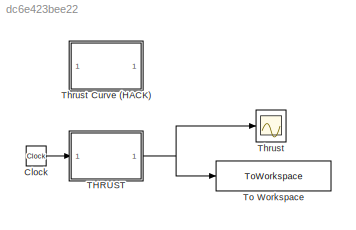
MODEL slx_dc6e423bee22
KIND model
CONFIG AbsTol = auto
CONFIG FixedStep = auto
CONFIG MaxStep = auto
CONFIG MinStep = auto
CONFIG RelTol = 1e-3
CONFIG SampleTimeConstraint = Unconstrained
CONFIG Solver = ode45
CONFIG SolverMode = Auto
CONFIG SolverName = ode45
CONFIG StartTime = 0.0
CONFIG StopTime = 10.0
BLOCK [Clock] Clock
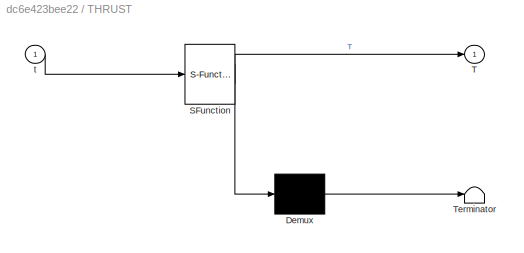
BLOCK [SubSystem] THRUST
  ErrorFcn = Stateflow.Translate.translate
  PermitHierarchicalResolution = ExplicitOnly
  Ports = [1, 1]
  RequestExecContextInheritance = off
  TreatAsAtomicUnit = on
BLOCK [Demux] THRUST/ Demux 
  Outputs = 1
  Ports = [1, 1]
BLOCK [S-Function] THRUST/ SFunction 
  EnableBusSupport = on
  FunctionName = thrust_hack
  PortCounts = [1 2]
  Ports = [1, 2]
  Tag = Stateflow S-Function VELOCITY_MODEL 2
BLOCK [Terminator] THRUST/ Terminator 
BLOCK [Outport] THRUST/T
  IconDisplay = Port number
BLOCK [Inport] THRUST/t
  IconDisplay = Port number
BLOCK [Scope] Thrust
  DataFormat = StructureWithTime
  Floating = off
  NumInputPorts = 1
  Ports = [1]
  SampleTime = 0
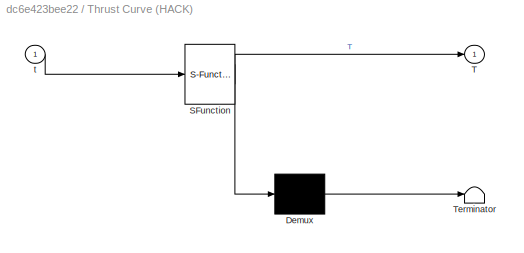
BLOCK [SubSystem] Thrust Curve (HACK)
  ErrorFcn = Stateflow.Translate.translate
  PermitHierarchicalResolution = ExplicitOnly
  Ports = [1, 1]
  RequestExecContextInheritance = off
  SFBlockType = MATLAB Function
  TreatAsAtomicUnit = on
BLOCK [Demux] Thrust Curve (HACK)/ Demux 
  Outputs = 1
  Ports = [1, 1]
BLOCK [S-Function] Thrust Curve (HACK)/ SFunction 
  FunctionName = sf_sfun
  PortCounts = [1 2]
  Ports = [1, 2]
  Tag = Stateflow S-Function sfunction_test 2
BLOCK [Terminator] Thrust Curve (HACK)/ Terminator 
BLOCK [Outport] Thrust Curve (HACK)/T
  IconDisplay = Port number
BLOCK [Inport] Thrust Curve (HACK)/t
  IconDisplay = Port number
BLOCK [ToWorkspace] To Workspace
  FixptAsFi = on
  MaxDataPoints = inf
  Ports = [1]
  SampleTime = -1
  Save2DSignal = 3-D array (concatenate along third dimension)
  VariableName = thrust_curve_test_out
LINE Clock:1 -> THRUST:1
NET THRUST:1 -> Thrust:1, To Workspace:1
note: NET lines group one-source signal fan-out (src -> all destinations, sorted); 1:1 wires keep LINE
CHART Thrust Curve (HACK) states=1 transitions=1
  STATE_LABEL 'eML_blk_kernel()'
  STATE_LABEL 'SCRIPT:\nfunction T = thrust_hack(t)\n    if t<0.08\n    T=4000000*t^3-462933*t^2+41915*t+209.66\n    elseif t<0.15935\n    T=-4701*t+2748.7\n    elseif t<0.21276 \n    T=-1133.2*t+2223.6 \n    elseif t<0.32775\n    T=787.15*t+1850.2\n    elseif t<0.57775\n    T=-754.4*t+2339.9\n    elseif t<0.72775\n    T=-251*t+2070.7 \n    elseif t<1.7277\n    T=-70.147*t+1947.4\n    elseif t<3.3777\n    T=-31.421*t^2-9.1503*t+...<+134ch>'
